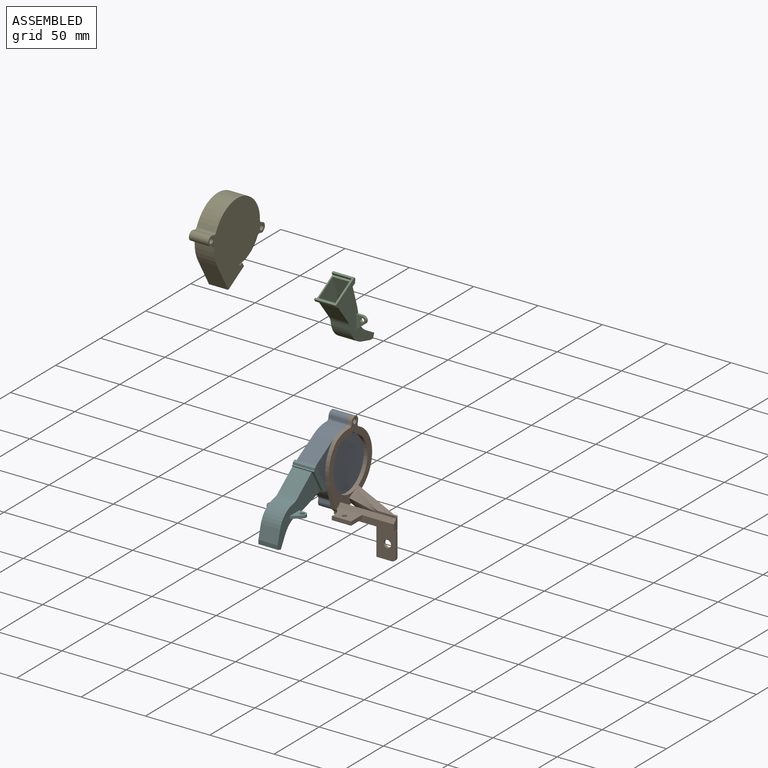
[diagram: assembled view]
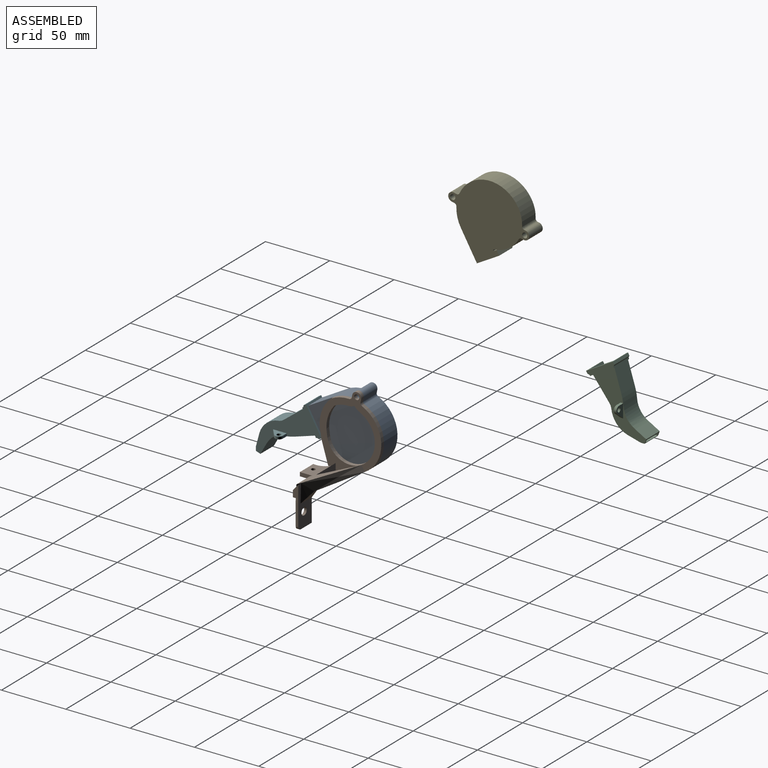
[diagram: assembled view, second angle]
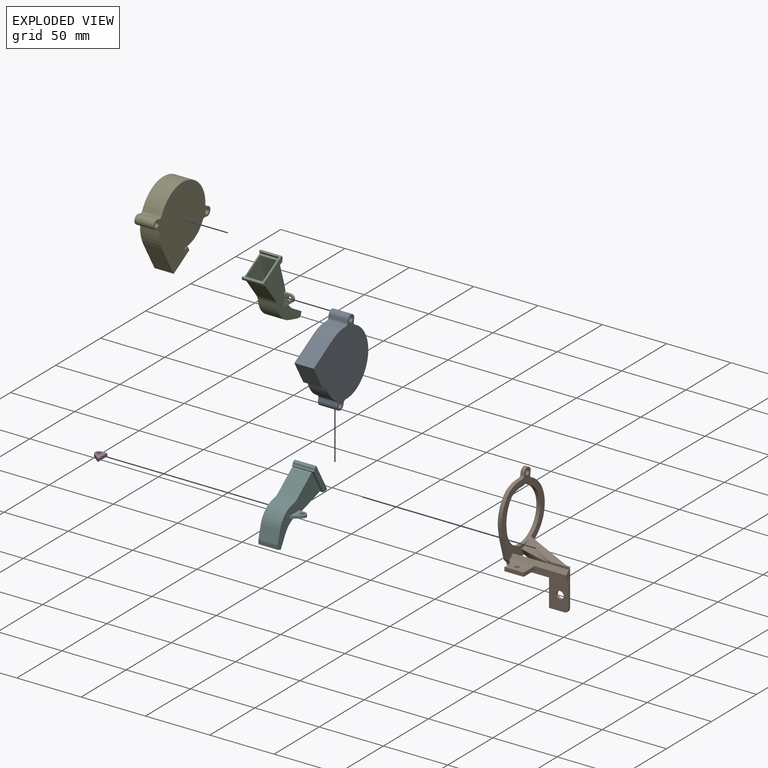
[diagram: exploded view]
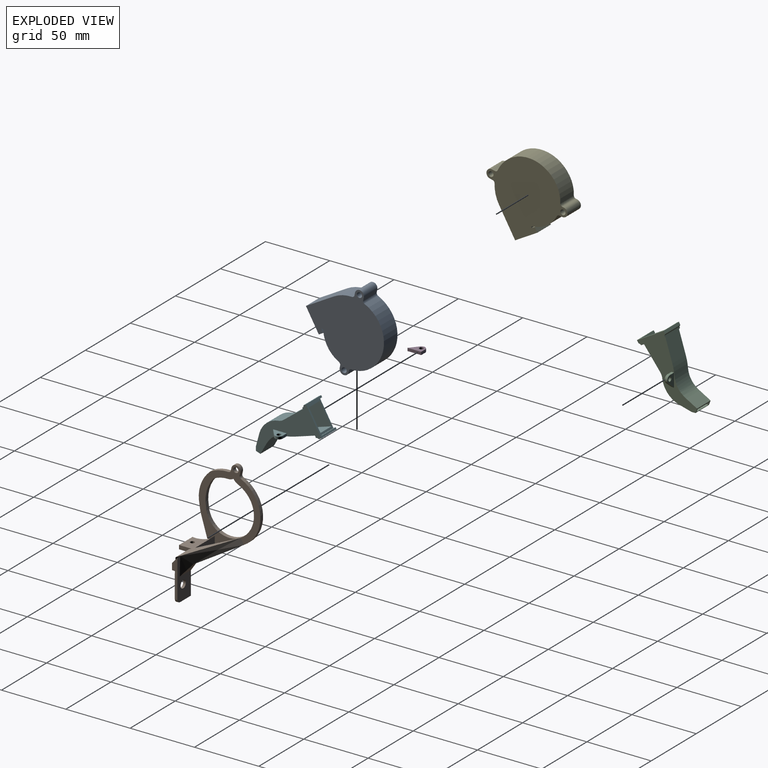
[diagram: exploded view, second angle]
ASSEMBLY  parts=6 mates=3
PART A: 24 faces, bbox 15x60.7x63 mm
  f0: plane 21.65x15mm, normal (0,-0.5,0.87), area 375mm2, adj f1,f19,f20,f21
  f1: plane 17.32x15mm, normal (0,-0.87,-0.5), area 300mm2, adj f0,f20,f21,f23
  f2: cylinder r=1mm len=15mm, axis (-1,0,0), area 30.5mm2, adj f3,f20,f21,f22
  f3: cylinder r=22.95mm len=18.93mm, axis (-1,0,0), area 352.4mm2, adj f2,f4,f20,f21
  f4: cylinder r=2mm len=15mm, axis (-1,0,0), area 38.7mm2, adj f3,f5,f20,f21
  f5: plane 15x1.78mm, normal (0,-0.98,0.21), area 27.3mm2, adj f4,f6,f20,f21
  f6: cylinder r=3.5mm len=15mm, axis (-1,0,0), area 164.9mm2, adj f5,f7,f20,f21
  f7: plane 15x1.17mm, normal (0,0.98,-0.21), area 18mm2, adj f6,f8,f20,f21
  f8: cylinder r=2mm len=15mm, axis (-1,0,0), area 42.1mm2, adj f7,f9,f20,f21
  f9: cylinder r=22.95mm len=15mm, axis (-1,0,0), area 195.4mm2, adj f8,f10,f20,f21
  f10: cylinder r=25.64mm len=33.76mm, axis (-1,0,0), area 582.6mm2, adj f9,f11,f20,f21
  f11: cylinder r=26.04mm len=15mm, axis (-1,0,0), area 261.4mm2, adj f10,f12,f20,f21
  f12: cylinder r=2mm len=15mm, axis (-1,0,0), area 40.4mm2, adj f11,f13,f20,f21
  f13: plane 15x2.27mm, normal (0,0.98,-0.21), area 34.8mm2, adj f12,f14,f20,f21
  f14: cylinder r=3.5mm len=15mm, axis (-1,0,0), area 164.9mm2, adj f13,f15,f20,f21
  f15: plane 15x1.98mm, normal (0,-0.98,0.21), area 30.4mm2, adj f14,f16,f20,f21
  f16: cylinder r=2mm len=15mm, axis (-1,0,0), area 42mm2, adj f15,f19,f20,f21
  f17: cylinder r=2mm len=15mm, axis (-1,0,0), area 188.5mm2, adj f20,f21
  f18: cylinder r=2mm len=15mm, axis (-1,0,0), area 188.5mm2, adj f20,f21
  f19: cylinder r=26.04mm len=15mm, axis (-1,0,0), area 219.8mm2, adj f0,f16,f20,f21
  f20: plane 62.96x60.67mm, normal (1,0,0), area 2217mm2, adj f0,f1,f2,f3,f4,f5,f6,f7
  f21: plane 62.96x60.67mm, normal (-1,0,0), area 2217mm2, adj f0,f1,f2,f3,f4,f5,f6,f7
  f22: plane 15x2.6mm, normal (0,0.87,0.5), area 45mm2, adj f2,f20,f21,f23
  f23: plane 15x3.46mm, normal (0,0.5,-0.87), area 60mm2, adj f1,f20,f21,f22
PART B: 123 faces, bbox 47.9x51x85.7 mm
  f0: plane 43.54x3.08mm, normal (0,-0.76,0.66), area 177.7mm2, adj f4,f25,f27,f29,f112,f116
  f1: cylinder r=22.95mm len=5.31mm, axis (-1,0,0), area 16.2mm2, adj f12,f25,f26,f115
  f2: cylinder r=3.5mm len=3mm, axis (-1,0,0), area 7.1mm2, adj f13,f25,f26,f107
  f3: plane 46.54x4.13mm, normal (0,0,-1), area 119.7mm2, adj f4,f25,f26,f27,f29,f95,f103,f105
  f4: plane 28.54x8.08mm, normal (0,1,0), area 230.7mm2, adj f0,f3,f25,f121
  f5: cylinder r=2mm len=3mm, axis (-1,0,0), area 8.1mm2, adj f6,f22,f25,f26
  f6: plane 3x2.27mm, normal (0,0.98,-0.21), area 7mm2, adj f5,f7,f25,f26
  f7: cylinder r=3.5mm len=6.92mm, axis (-1,0,0), area 33mm2, adj f6,f8,f25,f26
  f8: plane 3x1.98mm, normal (0,-0.98,0.21), area 6.1mm2, adj f7,f9,f25,f26
  f9: cylinder r=2mm len=3mm, axis (-1,0,0), area 8.4mm2, adj f8,f10,f25,f26
  f10: cylinder r=26.04mm len=14.04mm, axis (-1,0,0), area 44mm2, adj f9,f11,f25,f26
  f11: cylinder r=26.53mm len=25.7mm, axis (-1,0,0), area 85mm2, adj f10,f12,f25,f26
  f12: cylinder r=1mm len=3mm, axis (-1,0,0), area 1mm2, adj f1,f11,f25,f26
  f13: plane 16.65x8.22mm, normal (0,0.44,-0.9), area 55.7mm2, adj f2,f14,f25,f26,f118
  f14: cylinder r=25.64mm len=33.76mm, axis (-1,0,0), area 116.5mm2, adj f13,f22,f25,f26
  f15: cylinder r=10mm len=3.84mm, axis (-1,0,0), area 15mm2, adj f16,f23,f25,f26
  f16: cylinder r=21.04mm len=9.93mm, axis (-1,0,0), area 42.2mm2, adj f15,f17,f25,f26
  f17: cylinder r=20.64mm len=27.18mm, axis (-1,0,0), area 93.8mm2, adj f16,f18,f25,f26
  f18: cylinder r=17.95mm len=26.9mm, axis (-1,0,0), area 109.7mm2, adj f17,f19,f25,f26,f119
  f19: cylinder r=25.57mm len=21.41mm, axis (-1,0,0), area 68.7mm2, adj f18,f20,f25,f26
  f20: cylinder r=21.04mm len=11.34mm, axis (-1,0,0), area 35.5mm2, adj f19,f23,f25,f26
  f21: cylinder r=2mm len=4mm, axis (-1,0,0), area 37.7mm2, adj f25,f26
  f22: cylinder r=26.04mm len=12.29mm, axis (-1,0,0), area 52.3mm2, adj f5,f14,f25,f26
  f23: cylinder r=7mm len=4.18mm, axis (-1,0,0), area 13.3mm2, adj f15,f20,f25,f26
  f24: cylinder r=2mm len=4mm, axis (-1,0,0), area 37.7mm2, adj f25,f26
  f25: plane 62.96x47.94mm, normal (1,0,0), area 779.6mm2, adj f0,f1,f2,f3,f4,f5,f6,f7
  f26: plane 62.96x47.94mm, normal (-1,0,0), area 858.4mm2, adj f1,f2,f3,f5,f6,f7,f8,f9
  f27: plane 46.54x5mm, normal (0,-1,0), area 167.5mm2, adj f0,f3,f26,f29,f110,f113
  f28: plane 3.14x1.69mm, normal (0,-0.76,0.66), area 3.4mm2, adj f29,f105,f117
  f29: plane 9.75x4.13mm, normal (1,0,0), area 30.4mm2, adj f0,f3,f27,f28,f105
  f30: cylinder r=2.9mm len=2mm, axis (0,-1,0), area 1.5mm2, adj f31,f104,f105,f106
  f31: plane 2x0mm, normal (1,0,-0.06), area 0mm2, adj f30,f32,f105,f106
  f32: plane 2x0mm, normal (1,0,0.06), area 0mm2, adj f31,f33,f105,f106
  f33: cylinder r=2.9mm len=2mm, axis (0,-1,0), area 1.5mm2, adj f32,f34,f105,f106
  f34: plane 2x0mm, normal (0.98,0,0.19), area 0mm2, adj f33,f35,f105,f106
  f35: plane 2x0mm, normal (0.95,0,0.31), area 0mm2, adj f34,f36,f105,f106
  f36: cylinder r=2.9mm len=2mm, axis (0,-1,0), area 0.7mm2, adj f35,f37,f105,f106
  f37: plane 2x0mm, normal (0.95,0,0.31), area 0mm2, adj f36,f38,f105,f106
  f38: plane 2x0mm, normal (0.9,0,0.43), area 0mm2, adj f37,f39,f105,f106
  f39: cylinder r=2.9mm len=2mm, axis (0,-1,0), area 0.7mm2, adj f38,f40,f105,f106
  f40: plane 2x0mm, normal (0.9,0,0.43), area 0mm2, adj f39,f41,f105,f106
  f41: plane 2x0mm, normal (0.84,0,0.54), area 0mm2, adj f40,f42,f105,f106
  f42: cylinder r=2.9mm len=2mm, axis (0,-1,0), area 1.5mm2, adj f41,f43,f105,f106
  f43: plane 2x0mm, normal (0.77,0,0.64), area 0mm2, adj f42,f44,f105,f106
  f44: plane 2x0mm, normal (0.68,0,0.73), area 0mm2, adj f43,f45,f105,f106
  f45: cylinder r=2.9mm len=2mm, axis (0,-1,0), area 1.5mm2, adj f44,f46,f105,f106
  f46: plane 2x0mm, normal (0.59,0,0.81), area 0mm2, adj f45,f47,f105,f106
  f47: plane 2x0mm, normal (0.48,0,0.88), area 0mm2, adj f46,f48,f105,f106
  f48: cylinder r=2.9mm len=2mm, axis (0,-1,0), area 0.7mm2, adj f47,f49,f105,f106
  f49: plane 2x0mm, normal (0.48,0,0.88), area 0mm2, adj f48,f50,f105,f106
  f50: plane 2x0mm, normal (0.37,0,0.93), area 0mm2, adj f49,f51,f105,f106
  f51: cylinder r=2.9mm len=2mm, axis (0,-1,0), area 0.7mm2, adj f50,f52,f105,f106
  f52: plane 2x0mm, normal (0.37,0,0.93), area 0mm2, adj f51,f53,f105,f106
  f53: plane 2x0mm, normal (0.25,0,0.97), area 0mm2, adj f52,f54,f105,f106
  f54: cylinder r=2.9mm len=2mm, axis (0,-1,0), area 1.5mm2, adj f53,f55,f105,f106
  f55: plane 2x0mm, normal (0.13,0,0.99), area 0mm2, adj f54,f56,f105,f106
  f56: plane 2x0mm, normal (0,0,1), area 0mm2, adj f55,f57,f105,f106
  f57: cylinder r=2.9mm len=2mm, axis (0,-1,0), area 0.7mm2, adj f56,f58,f105,f106
  f58: plane 2x0mm, normal (0,0,1), area 0mm2, adj f57,f59,f105,f106
  f59: plane 2x0mm, normal (-0.13,0,0.99), area 0mm2, adj f58,f60,f105,f106
  f60: cylinder r=2.9mm len=2mm, axis (0,-1,0), area 1.5mm2, adj f59,f61,f105,f106
  f61: plane 2x0mm, normal (-0.25,0,0.97), area 0mm2, adj f60,f62,f105,f106
  f62: plane 2x0mm, normal (-0.37,0,0.93), area 0mm2, adj f61,f63,f105,f106
  f63: cylinder r=2.9mm len=2mm, axis (0,-1,0), area 1.5mm2, adj f62,f64,f105,f106
  f64: plane 2x0mm, normal (-0.48,0,0.88), area 0mm2, adj f63,f65,f105,f106
  f65: plane 2x0mm, normal (-0.59,0,0.81), area 0mm2, adj f64,f66,f105,f106
  f66: cylinder r=2.9mm len=2mm, axis (0,-1,0), area 3.6mm2, adj f65,f67,f105,f106
  f67: plane 2x0mm, normal (-0.9,0,0.43), area 0mm2, adj f66,f68,f105,f106
  f68: plane 2x0mm, normal (-0.95,0,0.31), area 0mm2, adj f67,f69,f105,f106
  f69: cylinder r=2.9mm len=2.13mm, axis (0,-1,0), area 4.4mm2, adj f68,f70,f105,f106
  f70: plane 2x0mm, normal (-0.95,0,-0.31), area 0mm2, adj f69,f71,f105,f106
  f71: plane 2x0mm, normal (-0.9,0,-0.43), area 0mm2, adj f70,f72,f105,f106
  f72: cylinder r=2.9mm len=2mm, axis (0,-1,0), area 4.4mm2, adj f71,f73,f105,f106
  f73: plane 2x0mm, normal (-0.48,0,-0.88), area 0mm2, adj f72,f74,f105,f106
  f74: plane 2x0mm, normal (-0.37,0,-0.93), area 0mm2, adj f73,f75,f105,f106
  f75: cylinder r=2.9mm len=2mm, axis (0,-1,0), area 2.9mm2, adj f74,f76,f105,f106
  f76: plane 2x0mm, normal (0,0,-1), area 0mm2, adj f75,f77,f105,f106
  f77: plane 2x0mm, normal (0.13,0,-0.99), area 0mm2, adj f76,f78,f105,f106
  f78: cylinder r=2.9mm len=2mm, axis (0,-1,0), area 2.2mm2, adj f77,f79,f105,f106
  f79: plane 2x0mm, normal (0.37,0,-0.93), area 0mm2, adj f78,f80,f105,f106
  f80: plane 2x0mm, normal (0.48,0,-0.88), area 0mm2, adj f79,f81,f105,f106
  f81: cylinder r=2.9mm len=2mm, axis (0,-1,0), area 0.7mm2, adj f80,f82,f105,f106
  f82: plane 2x0mm, normal (0.48,0,-0.88), area 0mm2, adj f81,f83,f105,f106
  f83: plane 2x0mm, normal (0.59,0,-0.81), area 0mm2, adj f82,f84,f105,f106
  f84: cylinder r=2.9mm len=2mm, axis (0,-1,0), area 1.5mm2, adj f83,f85,f105,f106
  f85: plane 2x0mm, normal (0.68,0,-0.73), area 0mm2, adj f84,f86,f105,f106
  f86: plane 2x0mm, normal (0.77,0,-0.64), area 0mm2, adj f85,f87,f105,f106
  f87: cylinder r=2.9mm len=2mm, axis (0,-1,0), area 1.5mm2, adj f86,f88,f105,f106
  f88: plane 2x0mm, normal (0.84,0,-0.54), area 0mm2, adj f87,f89,f105,f106
  f89: plane 2x0mm, normal (0.9,0,-0.43), area 0mm2, adj f88,f90,f105,f106
  f90: cylinder r=2.9mm len=2mm, axis (0,-1,0), area 0.7mm2, adj f89,f91,f105,f106
  f91: plane 2x0mm, normal (0.9,0,-0.43), area 0mm2, adj f90,f92,f105,f106
  f92: plane 2x0mm, normal (0.95,0,-0.31), area 0mm2, adj f91,f93,f105,f106
  f93: cylinder r=2.9mm len=2mm, axis (0,-1,0), area 0.7mm2, adj f92,f94,f105,f106
  f94: plane 2x0mm, normal (0.95,0,-0.31), area 0mm2, adj f93,f104,f105,f106
  f95: plane 3x2mm, normal (1,0,0.02), area 6mm2, adj f3,f96,f105,f106
  f96: plane 16.5x2mm, normal (1,0,0), area 33mm2, adj f95,f97,f105,f106
  f97: plane 2x0.93mm, normal (0.99,0,-0.16), area 1.9mm2, adj f96,f98,f105,f106
  f98: plane 2x0.84mm, normal (0.89,0,-0.45), area 1.9mm2, adj f97,f99,f105,f106
  f99: plane 2x0.66mm, normal (0.71,0,-0.71), area 1.9mm2, adj f98,f100,f105,f106
  f100: plane 2x0.84mm, normal (0.45,0,-0.89), area 1.9mm2, adj f99,f101,f105,f106
  f101: plane 2x0.93mm, normal (0.16,0,-0.99), area 1.9mm2, adj f100,f102,f105,f106
  f102: plane 12x2mm, normal (0,0,-1), area 24mm2, adj f101,f103,f105,f106
  f103: plane 24.49x6.53mm, normal (-1,0,0), area 56.5mm2, adj f3,f102,f105,f106,f118,f122
  f104: plane 2x0mm, normal (0.98,0,-0.19), area 0mm2, adj f30,f94,f105,f106
  f105: plane 33.13x15.88mm, normal (0,1,0), area 282.2mm2, adj f3,f28,f29,f30,f31,f32,f33,f34
  f106: plane 22.5x15mm, normal (0,-1,0), area 308.9mm2, adj f3,f30,f31,f32,f33,f34,f35,f36
  f107: plane 3x2.63mm, normal (0,-0.22,-0.98), area 8.1mm2, adj f2,f3,f25,f26
  f108: cylinder r=10mm len=11.97mm, axis (0,0,-1), area 37.7mm2, adj f25,f109,f112,f113,f114
  f109: plane 15x3mm, normal (0,-1,0), area 45mm2, adj f108,f110,f112,f113
  f110: plane 11.97x3mm, normal (1,0,0), area 35.9mm2, adj f27,f109,f112,f113
  f111: cylinder r=1.6mm len=3.2mm, axis (0,0,-1), area 30.2mm2, adj f112,f113
  f112: plane 18.73x11.97mm, normal (0,0,1), area 184.1mm2, adj f0,f25,f108,f109,f110,f111
  f113: plane 21.73x11.97mm, normal (0,0,-1), area 186.1mm2, adj f27,f108,f109,f110,f111
  f114: plane 3.43x3.24mm, normal (0,-0.68,-0.73), area 10.4mm2, adj f25,f26,f108,f115
  f115: plane 16.13x4.87mm, normal (0,-0.96,-0.29), area 50.6mm2, adj f1,f25,f26,f114
  f116: plane 15x1.67mm, normal (0,-1,0), area 25mm2, adj f0,f117,f119,f120
  f117: bspline ~43.54x23.99mm, area 346.2mm2, adj f25,f28,f105,f116,f118,f119,f122
  f118: bspline ~43.98x22.93mm, area 289.6mm2, adj f13,f103,f117,f121,f122
  f119: bspline ~43.54x20.2mm, area 185.5mm2, adj f18,f116,f117,f120
  f120: bspline ~28.54x18.1mm, area 150.1mm2, adj f25,f116,f119,f121
  f121: bspline ~28.54x12.17mm, area 196.6mm2, adj f4,f25,f118,f120
  f122: bspline ~13.81x6.89mm, area 63.9mm2, adj f103,f105,f117,f118
PART C: 49 faces, bbox 23.5x52.2x45.4 mm
  f0: plane 4.5x2mm, normal (0,1,0), area 9mm2, adj f7,f10,f11,f47
  f1: plane 6.41x5.29mm, normal (0.64,-0.77,0), area 16.6mm2, adj f7,f10,f11,f47
  f2: plane 52.22x45.37mm, normal (-1,0,0), area 668.5mm2, adj f3,f8,f12,f17,f18,f19,f22,f23
  f3: plane 15x10.25mm, normal (0,-0.97,0.26), area 159.1mm2, adj f2,f7,f27,f33
  f4: plane 48.49x41.43mm, normal (1,0,0), area 541.7mm2, adj f6,f8,f15,f17,f20,f21,f28,f31
  f5: plane 48.49x41.43mm, normal (-1,0,0), area 541.7mm2, adj f6,f8,f15,f17,f20,f21,f28,f31
  f6: plane 13x11.42mm, normal (0,0.97,-0.26), area 153.7mm2, adj f4,f5,f28,f32
  f7: plane 47.59x41.43mm, normal (1,0,0), area 597.3mm2, adj f0,f1,f3,f8,f11,f12,f18,f19
  f8: plane 15x3.47mm, normal (0,-0.34,-0.94), area 27.1mm2, adj f2,f4,f5,f7,f12,f13,f14,f15
  f9: cylinder r=1.6mm len=3.2mm, axis (0,0,-1), area 20.1mm2, adj f11,f47
  f10: cylinder r=3mm len=5.31mm, axis (0,0,-1), area 14.7mm2, adj f0,f1,f11,f47
  f11: plane 10.6x7.5mm, normal (0,0,1), area 46.1mm2, adj f0,f1,f7,f9,f10
  f12: plane 15x8.49mm, normal (0,0.87,-0.49), area 146mm2, adj f2,f7,f8,f30
  f13: plane 0.07x0.02mm, normal (1,0,0), area 0mm2, adj f8,f14,f29
  f14: plane 13x0.07mm, normal (0,0.97,-0.26), area 0.9mm2, adj f8,f13,f16,f29
  f15: plane 13x9.79mm, normal (0,-0.87,0.49), area 146.2mm2, adj f4,f5,f8,f31
  f16: plane 0.07x0.02mm, normal (-1,0,0), area 0mm2, adj f8,f14,f29
  f17: plane 18.19x15.5mm, normal (0,0.87,0.5), area 91.9mm2, adj f2,f4,f5,f20,f21,f44,f45,f46
  f18: plane 17.57x15mm, normal (0,0.3,-0.95), area 276.3mm2, adj f2,f7,f24,f37
  f19: plane 16.45x15mm, normal (0,-0.61,0.79), area 312.2mm2, adj f2,f7,f22,f35
  f20: plane 18.14x14.06mm, normal (0,0.61,-0.79), area 298.4mm2, adj f4,f5,f17,f34
  f21: plane 19.17x13mm, normal (0,-0.3,0.95), area 261.2mm2, adj f4,f5,f17,f36
  f22: plane 16.9x0.79mm, normal (0,-0.79,-0.61), area 16.9mm2, adj f2,f19,f23,f26,f41
  f23: plane 16.9x0.79mm, normal (0,-0.61,0.79), area 16.9mm2, adj f2,f22,f41,f43
  f24: plane 16.9x0.95mm, normal (0,-0.95,-0.3), area 16.9mm2, adj f2,f18,f25,f26,f41
  f25: plane 16.9x1.03mm, normal (0,0.3,-0.95), area 18.3mm2, adj f2,f24,f41,f42
  f26: plane 16.69x9.67mm, normal (0,-0.87,-0.5), area 36.7mm2, adj f7,f22,f24,f41
  f27: plane 15x3.08mm, normal (0,-1,0), area 46.2mm2, adj f2,f3,f7,f8
  f28: plane 13x1.29mm, normal (0,1,0), area 16.8mm2, adj f4,f5,f6,f8
  f29: plane 13x0.07mm, normal (0,-1,0), area 1mm2, adj f8,f13,f14,f16
  f30: bspline ~22.14x15.69mm, area 255.9mm2, adj f2,f7,f12,f37
  f31: extruded ~13.63x13mm, area 216.3mm2, adj f4,f5,f15,f36
  f32: cylinder r=16.74mm len=14.3mm, axis (-1,0,0), area 260.5mm2, adj f4,f5,f6,f34
  f33: cylinder r=17.74mm len=15mm, axis (-1,0,0), area 307.1mm2, adj f2,f3,f7,f35
  f34: cylinder r=8mm len=13mm, axis (-1,0,0), area 56.9mm2, adj f4,f5,f20,f32
  f35: cylinder r=8mm len=15mm, axis (-1,0,0), area 64.3mm2, adj f2,f7,f19,f33
  f36: cylinder r=40mm len=13mm, axis (-1,0,0), area 108mm2, adj f4,f5,f21,f31
  f37: cylinder r=40mm len=15mm, axis (1,0,0), area 125.6mm2, adj f2,f7,f18,f30
  f38: plane 16.9x1.85mm, normal (0,-0.5,0.87), area 36.1mm2, adj f2,f41,f43,f48
  f39: plane 16.9x0.07mm, normal (0,-0.87,-0.5), area 1.4mm2, adj f2,f40,f41,f42
  f40: plane 16.9x1.92mm, normal (0,0.5,-0.87), area 37.5mm2, adj f2,f39,f41,f48
  f41: plane 21.87x14.91mm, normal (1,0,0), area 92mm2, adj f22,f23,f24,f25,f26,f38,f39,f40
  f42: plane 16.9x1.33mm, normal (0,-0.36,-0.93), area 24.2mm2, adj f2,f25,f39,f41
  f43: plane 16.9x1.48mm, normal (0,-0.98,0.19), area 25.5mm2, adj f2,f23,f38,f41
  f44: plane 15.5x1.73mm, normal (0,0.5,-0.87), area 31mm2, adj f2,f17,f45,f48
  f45: plane 19.19x12.23mm, normal (-1,0,0), area 42mm2, adj f17,f44,f46,f48
  f46: plane 15.5x1.73mm, normal (0,-0.5,0.87), area 31mm2, adj f2,f17,f45,f48
  f47: plane 10.6x7.5mm, normal (0,0,-1), area 46.1mm2, adj f0,f1,f7,f9,f10
  f48: plane 20.76x16.9mm, normal (0,0.87,0.5), area 79.5mm2, adj f2,f38,f40,f41,f44,f45,f46
PART D: 7 faces, bbox 7.5x10.6x2.3 mm
  f0: cylinder r=3mm len=5.31mm, axis (0,0,-1), area 16.6mm2, adj f2,f3,f5,f6
  f1: cylinder r=1.6mm len=3.2mm, axis (0,0,-1), area 22.7mm2, adj f2,f3
  f2: plane 10.6x7.5mm, normal (0,0,1), area 46.1mm2, adj f0,f1,f4,f5,f6
  f3: plane 10.6x7.5mm, normal (0,0,-1), area 46.1mm2, adj f0,f1,f4,f5,f6
  f4: plane 10.6x2.26mm, normal (1,0,0), area 23.9mm2, adj f2,f3,f5,f6
  f5: plane 4.5x2.26mm, normal (0,1,0), area 10.2mm2, adj f0,f2,f3,f4
  f6: plane 6.41x5.29mm, normal (-0.64,-0.77,0), area 18.8mm2, adj f0,f2,f3,f4
PART E: same geometry as A
PART F: same geometry as C
PLACE A t=(0.27,0.3,-14.96)mm
PLACE B t=(0.27,0.3,-14.96)mm
PLACE C rot(axis=(1,0,0),90deg) t=(-92.39,205.24,70.44)mm
PLACE D t=(-0.23,0.55,-15.14)mm
PLACE E rot(axis=(1,0,0),90deg) t=(-106.69,106.29,114.72)mm
PLACE F t=(-0.23,0.55,-15.4)mm
MATE fastened D.f4 <-> F.f2  axis (-1,0,0) through (-7.73,-18.19,11.1)mm
MATE fastened B.f2 <-> A.f6  axis (-1,0,0) through (7.77,26.71,-0.89)mm
MATE fastened A.f1 <-> F.f17  axis (0,-0.87,-0.5) through (7.77,-2.94,36.26)mm
